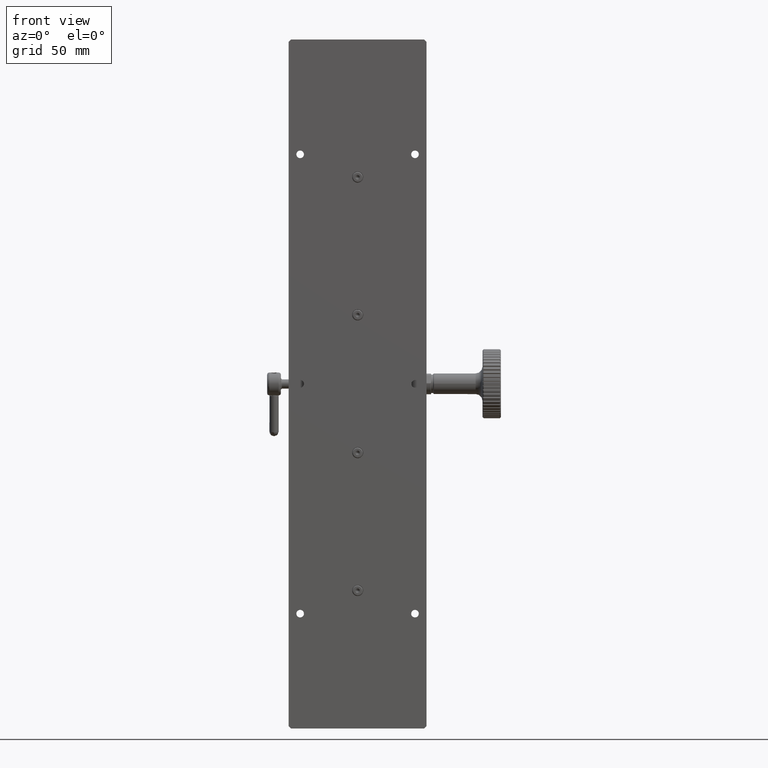
[diagram: clean part render]
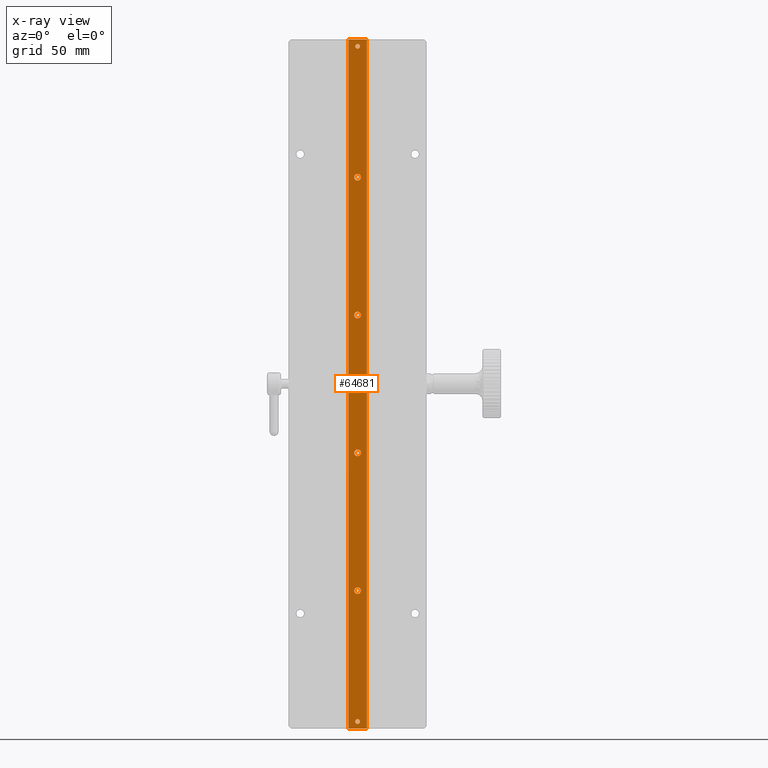
[diagram: x-ray — body ghosted, one internal face saturated and labeled with its STEP entity id]
A machine part, front view, then the same camera in x-ray: the body is ghosted and one INTERNAL B-rep face — a face not visible from any outside direction — is saturated and labeled: STEP entity #64681.
In plain terms, the highlighted planar face has unit normal (0, -1, 0).
Its self-contained STEP definition (entity closure, byte-faithful):
#426 = VERTEX_POINT ( 'NONE', #77618 ) ;
#492 = CIRCLE ( 'NONE', #30290, 1.449999999999993072 ) ;
#1603 = DIRECTION ( 'NONE',  ( 1.000000000000000000, 4.785444071660180624E-15, 0.000000000000000000 ) ) ;
#1699 = FACE_BOUND ( 'NONE', #16449, .T. ) ;
#3508 = VERTEX_POINT ( 'NONE', #26796 ) ;
#3952 = CARTESIAN_POINT ( 'NONE',  ( 112.9082209827905956, 61.42535012998669686, 34.10480627109914309 ) ) ;
#6139 = EDGE_LOOP ( 'NONE', ( #11980 ) ) ;
#6773 = DIRECTION ( 'NONE',  ( 1.000000000000000000, 4.785444071660134870E-15, 0.000000000000000000 ) ) ;
#7436 = EDGE_LOOP ( 'NONE', ( #47980, #79226, #52835, #73635 ) ) ;
#8931 = EDGE_CURVE ( 'NONE', #94909, #23852, #73083, .T. ) ;
#10274 = CARTESIAN_POINT ( 'NONE',  ( 112.9082209827901551, 61.42535012998669686, -82.89519372890084981 ) ) ;
#10656 = CARTESIAN_POINT ( 'NONE',  ( 108.8582209827905842, 61.42535012998649080, 214.1048062710991644 ) ) ;
#10987 = FACE_BOUND ( 'NONE', #15026, .T. ) ;
#11980 = ORIENTED_EDGE ( 'NONE', *, *, #21990, .F. ) ;
#12211 = CARTESIAN_POINT ( 'NONE',  ( 116.9582209827906070, 61.42535012998691002, 214.1048062710991644 ) ) ;
#12712 = CIRCLE ( 'NONE', #50753, 1.449999999999993072 ) ;
#14324 = VERTEX_POINT ( 'NONE', #21592 ) ;
#14670 = VERTEX_POINT ( 'NONE', #21389 ) ;
#15026 = EDGE_LOOP ( 'NONE', ( #31228 ) ) ;
#15966 = ORIENTED_EDGE ( 'NONE', *, *, #39175, .F. ) ;
#16449 = EDGE_LOOP ( 'NONE', ( #15966 ) ) ;
#17897 = CARTESIAN_POINT ( 'NONE',  ( 114.3582209827905842, 61.42535012998669686, 154.1048062710991360 ) ) ;
#18760 = FACE_BOUND ( 'NONE', #78261, .T. ) ;
#19859 = CARTESIAN_POINT ( 'NONE',  ( 112.9082209827906524, 61.42535012998649080, -85.89519372890084981 ) ) ;
#19945 = EDGE_CURVE ( 'NONE', #94909, #92988, #98143, .T. ) ;
#20000 = DIRECTION ( 'NONE',  ( -6.982962677686266711E-15, 1.000000000000000000, -0.000000000000000000 ) ) ;
#20812 = DIRECTION ( 'NONE',  ( 1.000000000000000000, 5.045813127315440619E-14, 0.000000000000000000 ) ) ;
#21389 = CARTESIAN_POINT ( 'NONE',  ( 116.9582209827906070, 61.42535012998680344, -85.89519372890083559 ) ) ;
#21592 = CARTESIAN_POINT ( 'NONE',  ( 114.3582209827905842, 61.42535012998670396, -25.89519372890085336 ) ) ;
#21990 = EDGE_CURVE ( 'NONE', #84854, #84854, #12712, .T. ) ;
#22383 = DIRECTION ( 'NONE',  ( 1.000000000000000000, 4.785444071660180624E-15, 0.000000000000000000 ) ) ;
#23852 = VERTEX_POINT ( 'NONE', #86816 ) ;
#24962 = EDGE_LOOP ( 'NONE', ( #32761 ) ) ;
#26500 = CARTESIAN_POINT ( 'NONE',  ( 108.8582209827905700, 61.42535012998649080, 214.1048062710991644 ) ) ;
#26624 = EDGE_CURVE ( 'NONE', #426, #426, #74032, .T. ) ;
#26796 = CARTESIAN_POINT ( 'NONE',  ( 111.8832209827901636, 61.42535012998668975, 211.1048062710991076 ) ) ;
#27221 = DIRECTION ( 'NONE',  ( 0.000000000000000000, -0.000000000000000000, -1.000000000000000000 ) ) ;
#27579 = AXIS2_PLACEMENT_3D ( 'NONE', #38868, #31110, #54405 ) ;
#30290 = AXIS2_PLACEMENT_3D ( 'NONE', #73543, #98373, #1603 ) ;
#31091 = DIRECTION ( 'NONE',  ( -6.982962677686266711E-15, 1.000000000000000000, -0.000000000000000000 ) ) ;
#31110 = DIRECTION ( 'NONE',  ( -6.982962677686266711E-15, 1.000000000000000000, 0.000000000000000000 ) ) ;
#31228 = ORIENTED_EDGE ( 'NONE', *, *, #65408, .F. ) ;
#32761 = ORIENTED_EDGE ( 'NONE', *, *, #72457, .F. ) ;
#33282 = CARTESIAN_POINT ( 'NONE',  ( 108.8582209827905842, 61.42535012998649080, 214.1048062710991644 ) ) ;
#34264 = EDGE_CURVE ( 'NONE', #23852, #14670, #44296, .T. ) ;
#34559 = VERTEX_POINT ( 'NONE', #71870 ) ;
#34587 = DIRECTION ( 'NONE',  ( -6.982962677686266711E-15, 1.000000000000000000, 0.000000000000000000 ) ) ;
#36179 = EDGE_CURVE ( 'NONE', #92988, #14670, #90779, .T. ) ;
#36829 = CARTESIAN_POINT ( 'NONE',  ( 112.9082209827905814, 61.42535012998668975, 154.1048062710991360 ) ) ;
#37399 = DIRECTION ( 'NONE',  ( -6.982962677686266711E-15, 1.000000000000000000, -0.000000000000000000 ) ) ;
#38868 = CARTESIAN_POINT ( 'NONE',  ( 112.9082209827901551, 61.42535012998669686, 211.1048062710991076 ) ) ;
#39164 = CIRCLE ( 'NONE', #27579, 1.024999999999998135 ) ;
#39175 = EDGE_CURVE ( 'NONE', #34559, #34559, #91106, .T. ) ;
#44296 = LINE ( 'NONE', #12211, #61225 ) ;
#45792 = VECTOR ( 'NONE', #27221, 1000.000000000000000 ) ;
#46449 = AXIS2_PLACEMENT_3D ( 'NONE', #3952, #20000, #67086 ) ;
#47708 = DIRECTION ( 'NONE',  ( 1.000000000000000000, -0.000000000000000000, 0.000000000000000000 ) ) ;
#47980 = ORIENTED_EDGE ( 'NONE', *, *, #19945, .F. ) ;
#48268 = PLANE ( 'NONE',  #93532 ) ;
#48731 = CARTESIAN_POINT ( 'NONE',  ( 112.9082209827906524, 61.42535012998649080, 214.1048062710991644 ) ) ;
#50753 = AXIS2_PLACEMENT_3D ( 'NONE', #62728, #37399, #22383 ) ;
#52056 = DIRECTION ( 'NONE',  ( -0.000000000000000000, -0.000000000000000000, -1.000000000000000000 ) ) ;
#52835 = ORIENTED_EDGE ( 'NONE', *, *, #34264, .T. ) ;
#54405 = DIRECTION ( 'NONE',  ( -1.000000000000000000, -6.769652589177795712E-15, 0.000000000000000000 ) ) ;
#56047 = FACE_BOUND ( 'NONE', #6139, .T. ) ;
#61225 = VECTOR ( 'NONE', #52056, 1000.000000000000000 ) ;
#61562 = CIRCLE ( 'NONE', #74795, 1.450000000000006839 ) ;
#62728 = CARTESIAN_POINT ( 'NONE',  ( 112.9082209827905956, 61.42535012998669686, 94.10480627109913598 ) ) ;
#64681 = ADVANCED_FACE ( 'NONE', ( #89682, #10987, #18760, #72624, #81922, #56047, #1699 ), #48268, .F. ) ;
#65408 = EDGE_CURVE ( 'NONE', #3508, #3508, #39164, .T. ) ;
#66521 = CARTESIAN_POINT ( 'NONE',  ( 108.8582209827905700, 61.42535012998649080, -85.89519372890083559 ) ) ;
#67086 = DIRECTION ( 'NONE',  ( 1.000000000000000000, 4.785444071660180624E-15, 0.000000000000000000 ) ) ;
#67467 = DIRECTION ( 'NONE',  ( 1.000000000000000000, -0.000000000000000000, 0.000000000000000000 ) ) ;
#69203 = VECTOR ( 'NONE', #47708, 1000.000000000000000 ) ;
#70331 = CARTESIAN_POINT ( 'NONE',  ( 114.3582209827905842, 61.42535012998670396, 94.10480627109913598 ) ) ;
#71870 = CARTESIAN_POINT ( 'NONE',  ( 114.3582209827905842, 61.42535012998670396, 34.10480627109914309 ) ) ;
#72457 = EDGE_CURVE ( 'NONE', #14324, #14324, #492, .T. ) ;
#72624 = FACE_BOUND ( 'NONE', #24962, .T. ) ;
#73083 = LINE ( 'NONE', #48731, #69203 ) ;
#73543 = CARTESIAN_POINT ( 'NONE',  ( 112.9082209827905956, 61.42535012998669686, -25.89519372890085336 ) ) ;
#73635 = ORIENTED_EDGE ( 'NONE', *, *, #36179, .F. ) ;
#74032 = CIRCLE ( 'NONE', #87237, 1.024999999999998135 ) ;
#74795 = AXIS2_PLACEMENT_3D ( 'NONE', #36829, #31091, #6773 ) ;
#77329 = ORIENTED_EDGE ( 'NONE', *, *, #85665, .F. ) ;
#77618 = CARTESIAN_POINT ( 'NONE',  ( 111.8832209827901636, 61.42535012998668975, -82.89519372890084981 ) ) ;
#78261 = EDGE_LOOP ( 'NONE', ( #100276 ) ) ;
#79226 = ORIENTED_EDGE ( 'NONE', *, *, #8931, .T. ) ;
#81067 = VERTEX_POINT ( 'NONE', #17897 ) ;
#81922 = FACE_BOUND ( 'NONE', #100859, .T. ) ;
#82672 = VECTOR ( 'NONE', #67467, 1000.000000000000000 ) ;
#84854 = VERTEX_POINT ( 'NONE', #70331 ) ;
#85665 = EDGE_CURVE ( 'NONE', #81067, #81067, #61562, .T. ) ;
#86816 = CARTESIAN_POINT ( 'NONE',  ( 116.9582209827906070, 61.42535012998680344, 214.1048062710991644 ) ) ;
#87237 = AXIS2_PLACEMENT_3D ( 'NONE', #10274, #34587, #98784 ) ;
#89682 = FACE_OUTER_BOUND ( 'NONE', #7436, .T. ) ;
#90713 = DIRECTION ( 'NONE',  ( 5.045813127315440619E-14, -1.000000000000000000, 0.000000000000000000 ) ) ;
#90779 = LINE ( 'NONE', #19859, #82672 ) ;
#91106 = CIRCLE ( 'NONE', #46449, 1.449999999999993072 ) ;
#92988 = VERTEX_POINT ( 'NONE', #66521 ) ;
#93532 = AXIS2_PLACEMENT_3D ( 'NONE', #33282, #90713, #20812 ) ;
#94909 = VERTEX_POINT ( 'NONE', #26500 ) ;
#98143 = LINE ( 'NONE', #10656, #45792 ) ;
#98373 = DIRECTION ( 'NONE',  ( -6.982962677686266711E-15, 1.000000000000000000, -0.000000000000000000 ) ) ;
#98784 = DIRECTION ( 'NONE',  ( -1.000000000000000000, -6.769652589177795712E-15, 0.000000000000000000 ) ) ;
#100276 = ORIENTED_EDGE ( 'NONE', *, *, #26624, .F. ) ;
#100859 = EDGE_LOOP ( 'NONE', ( #77329 ) ) ;